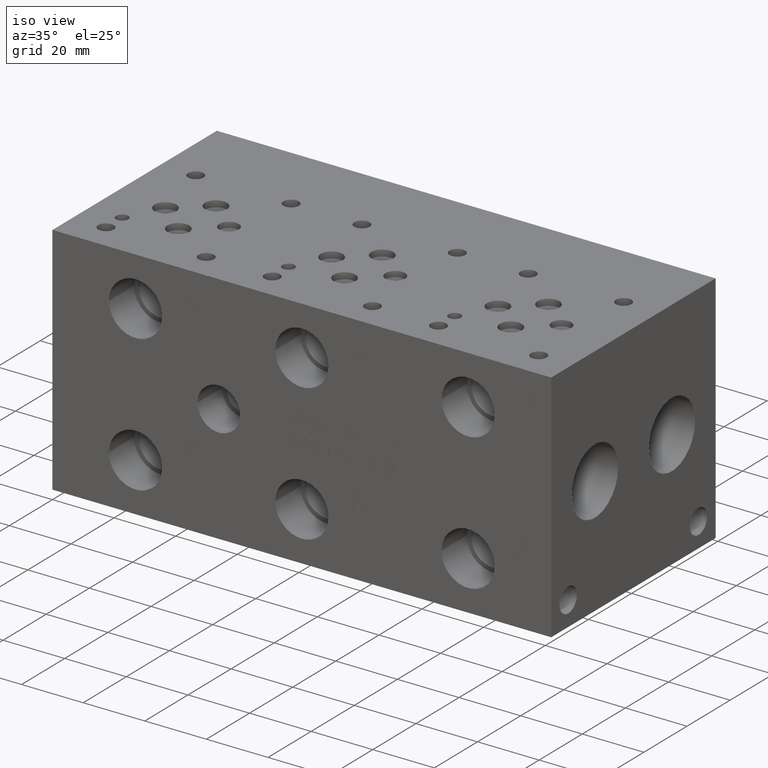
[diagram: clean part render]
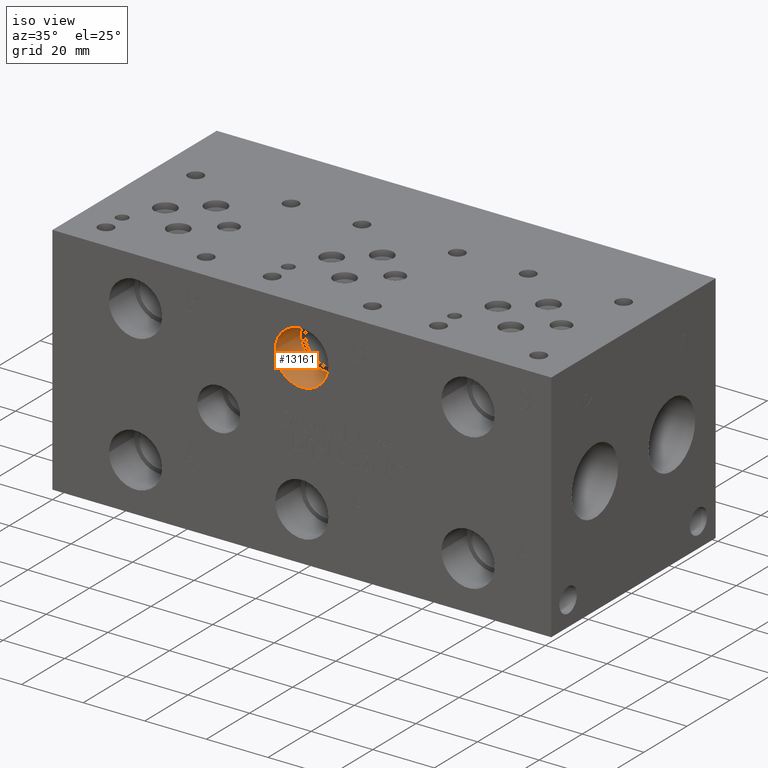
[diagram: same view with one face highlighted and labeled with its STEP entity id]
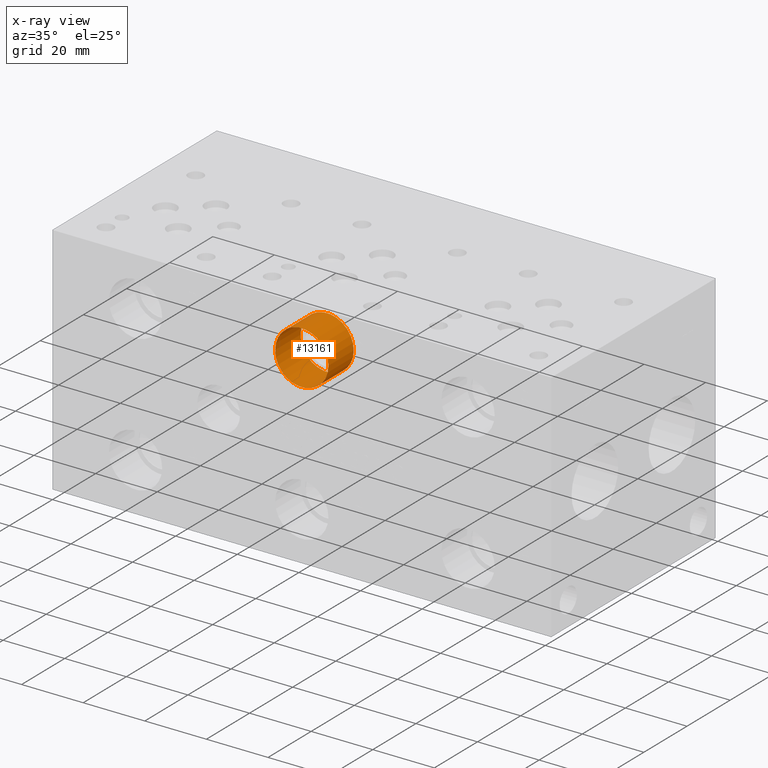
[diagram: x-ray of the same camera — body ghosted, the highlighted face saturated]
A machine part, iso view. The second image highlights one B-rep face of the part: STEP entity #13161.
The next image is the same camera in x-ray: the body ghosted, the highlighted face saturated — about 0% of this face is hidden behind the body in this view.
In plain terms, the highlighted cylindrical surface (bore or boss wall) has radius 8.6487 mm, axis along (0, -1, 0).
Its self-contained STEP definition (entity closure, byte-faithful):
#48=CYLINDRICAL_SURFACE('',#13810,8.6487);
#164=CIRCLE('',#13409,8.6487);
#165=CIRCLE('',#13410,8.6487);
#274=CIRCLE('',#13807,8.6487);
#275=CIRCLE('',#13808,8.6487);
#1511=FACE_OUTER_BOUND('',#2271,.T.);
#2271=EDGE_LOOP('',(#11395,#11396,#11397,#11398,#11399,#11400));
#3516=LINE('',#22428,#4701);
#4701=VECTOR('',#16253,8.6487);
#5751=VERTEX_POINT('',#20227);
#5752=VERTEX_POINT('',#20228);
#6221=VERTEX_POINT('',#22421);
#6222=VERTEX_POINT('',#22422);
#7256=EDGE_CURVE('',#5751,#5752,#164,.T.);
#7257=EDGE_CURVE('',#5752,#5751,#165,.T.);
#8004=EDGE_CURVE('',#6221,#6222,#274,.T.);
#8005=EDGE_CURVE('',#6222,#6221,#275,.T.);
#8007=EDGE_CURVE('',#5752,#6222,#3516,.T.);
#11395=ORIENTED_EDGE('',*,*,#7256,.F.);
#11396=ORIENTED_EDGE('',*,*,#7257,.F.);
#11397=ORIENTED_EDGE('',*,*,#8007,.T.);
#11398=ORIENTED_EDGE('',*,*,#8004,.F.);
#11399=ORIENTED_EDGE('',*,*,#8005,.F.);
#11400=ORIENTED_EDGE('',*,*,#8007,.F.);
#13161=ADVANCED_FACE('',(#1511),#48,.F.);
#13409=AXIS2_PLACEMENT_3D('',#20229,#14907,#14908);
#13410=AXIS2_PLACEMENT_3D('',#20230,#14909,#14910);
#13807=AXIS2_PLACEMENT_3D('',#22423,#16245,#16246);
#13808=AXIS2_PLACEMENT_3D('',#22424,#16247,#16248);
#13810=AXIS2_PLACEMENT_3D('',#22427,#16251,#16252);
#14907=DIRECTION('center_axis',(0.,1.,0.));
#14908=DIRECTION('ref_axis',(1.,0.,0.));
#14909=DIRECTION('center_axis',(0.,1.,0.));
#14910=DIRECTION('ref_axis',(1.,0.,0.));
#16245=DIRECTION('center_axis',(0.,-1.,0.));
#16246=DIRECTION('ref_axis',(1.,0.,0.));
#16247=DIRECTION('center_axis',(0.,-1.,0.));
#16248=DIRECTION('ref_axis',(1.,0.,0.));
#16251=DIRECTION('center_axis',(0.,-1.,0.));
#16252=DIRECTION('ref_axis',(1.,0.,0.));
#16253=DIRECTION('',(0.,1.,0.));
#20227=CARTESIAN_POINT('',(89.5985,0.,60.325));
#20228=CARTESIAN_POINT('',(72.3011,0.,60.325));
#20229=CARTESIAN_POINT('Origin',(80.9498,0.,60.325));
#20230=CARTESIAN_POINT('Origin',(80.9498,0.,60.325));
#22421=CARTESIAN_POINT('',(89.5985,11.7348,60.325));
#22422=CARTESIAN_POINT('',(72.3011,11.7348,60.325));
#22423=CARTESIAN_POINT('Origin',(80.9498,11.7348,60.325));
#22424=CARTESIAN_POINT('Origin',(80.9498,11.7348,60.325));
#22427=CARTESIAN_POINT('Origin',(80.9498,5.8674,60.325));
#22428=CARTESIAN_POINT('',(72.3011,5.8674,60.325));